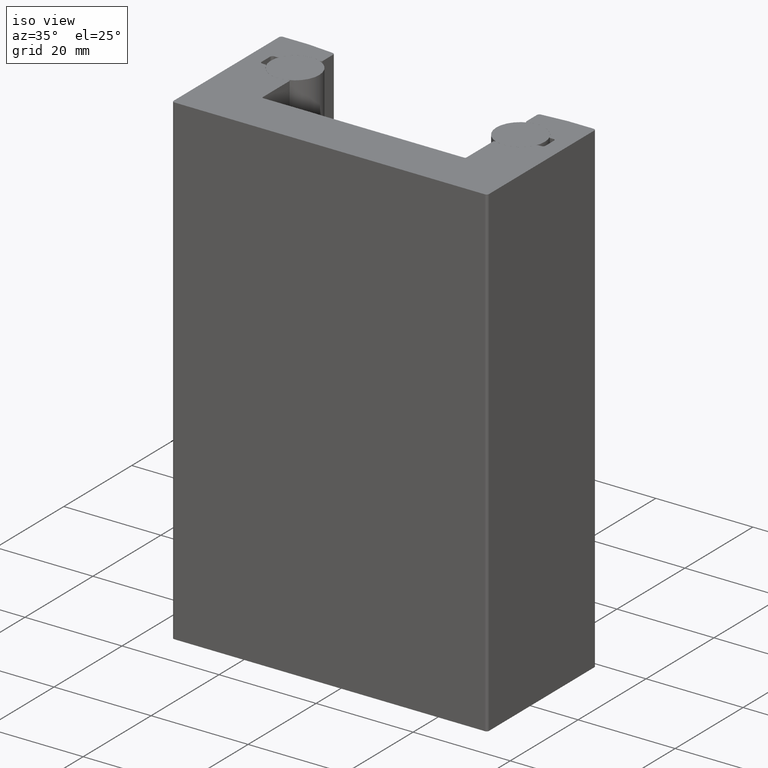
[diagram: clean part render]
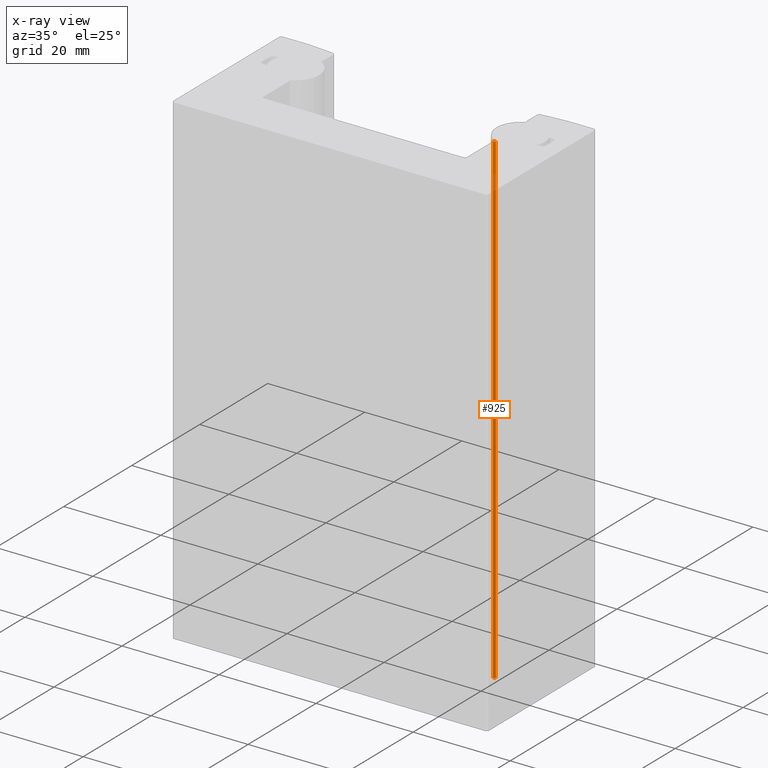
[diagram: x-ray — body ghosted, one internal face saturated and labeled with its STEP entity id]
A machine part, iso view, then the same camera in x-ray: the body is ghosted and one INTERNAL B-rep face — a face not visible from any outside direction — is saturated and labeled: STEP entity #925.
In plain terms, the highlighted cylindrical surface (edge-blend (fillet) strip) has radius 0.3 mm, axis along (0, 0, -1).
Its self-contained STEP definition (entity closure, byte-faithful):
#89=FACE_OUTER_BOUND('',#138,.T.);
#138=EDGE_LOOP('',(#816,#817,#818,#819));
#225=LINE('',#1662,#306);
#226=LINE('',#1664,#307);
#306=VECTOR('',#1365,10.);
#307=VECTOR('',#1368,10.);
#346=CIRCLE('',#1065,0.3);
#363=CIRCLE('',#1084,0.3);
#429=VERTEX_POINT('',#1589);
#430=VERTEX_POINT('',#1591);
#451=VERTEX_POINT('',#1639);
#452=VERTEX_POINT('',#1641);
#545=EDGE_CURVE('',#430,#429,#346,.T.);
#571=EDGE_CURVE('',#452,#451,#363,.T.);
#583=EDGE_CURVE('',#429,#452,#225,.T.);
#584=EDGE_CURVE('',#451,#430,#226,.T.);
#816=ORIENTED_EDGE('',*,*,#545,.T.);
#817=ORIENTED_EDGE('',*,*,#583,.T.);
#818=ORIENTED_EDGE('',*,*,#571,.T.);
#819=ORIENTED_EDGE('',*,*,#584,.T.);
#882=CYLINDRICAL_SURFACE('',#1092,0.3);
#925=ADVANCED_FACE('',(#89),#882,.T.);
#1065=AXIS2_PLACEMENT_3D('',#1592,#1292,#1293);
#1084=AXIS2_PLACEMENT_3D('',#1642,#1339,#1340);
#1092=AXIS2_PLACEMENT_3D('',#1663,#1366,#1367);
#1292=DIRECTION('center_axis',(0.,0.,1.));
#1293=DIRECTION('ref_axis',(-0.562172336431674,0.827020111092199,0.));
#1339=DIRECTION('center_axis',(0.,0.,-1.));
#1340=DIRECTION('ref_axis',(-0.562172336431674,0.827020111092199,0.));
#1365=DIRECTION('',(0.,0.,1.));
#1366=DIRECTION('center_axis',(0.,0.,-1.));
#1367=DIRECTION('ref_axis',(-0.562172336431674,0.827020111092199,0.));
#1368=DIRECTION('',(0.,0.,-1.));
#1589=CARTESIAN_POINT('',(21.,2.07176502183592,-3000.));
#1591=CARTESIAN_POINT('',(21.4103773584906,2.35072171871314,-3000.));
#1592=CARTESIAN_POINT('Origin',(21.3,2.07176502183592,-3000.));
#1639=CARTESIAN_POINT('',(21.4103773584906,2.35072171871314,-2900.));
#1641=CARTESIAN_POINT('',(21.,2.07176502183592,-2900.));
#1642=CARTESIAN_POINT('Origin',(21.3,2.07176502183592,-2900.));
#1662=CARTESIAN_POINT('',(21.,2.07176502183592,3000.));
#1663=CARTESIAN_POINT('Origin',(21.3,2.07176502183592,3000.));
#1664=CARTESIAN_POINT('',(21.4103773584906,2.35072171871314,3000.));